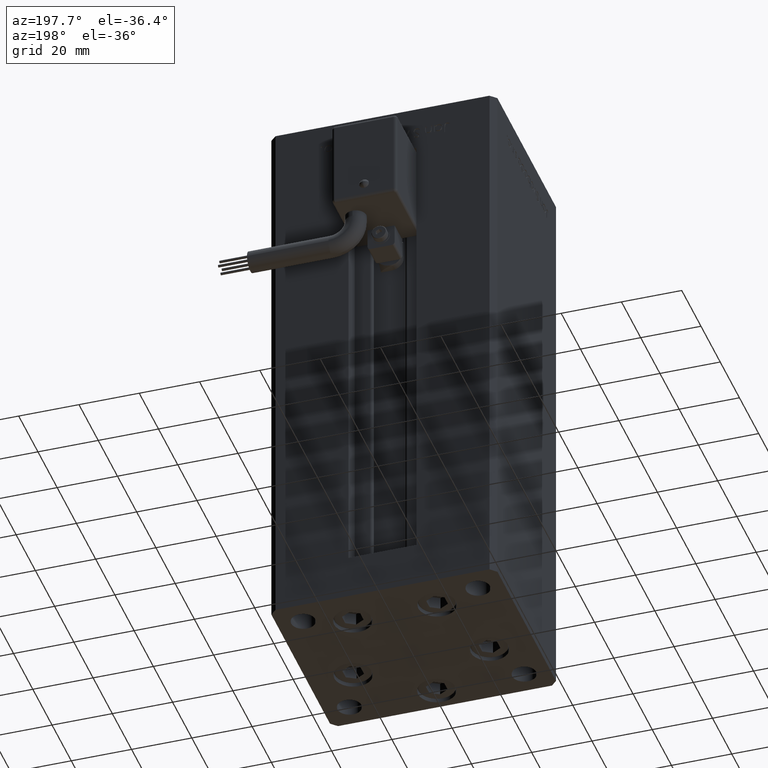
[diagram: clean part render]
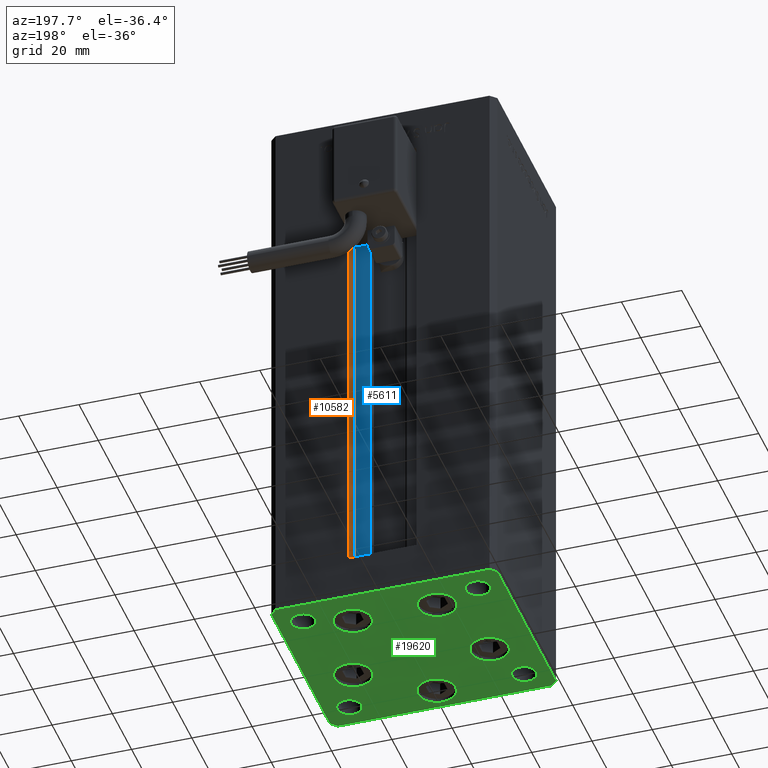
[diagram: same view with three faces highlighted in distinct colors, each labeled with its STEP entity id]
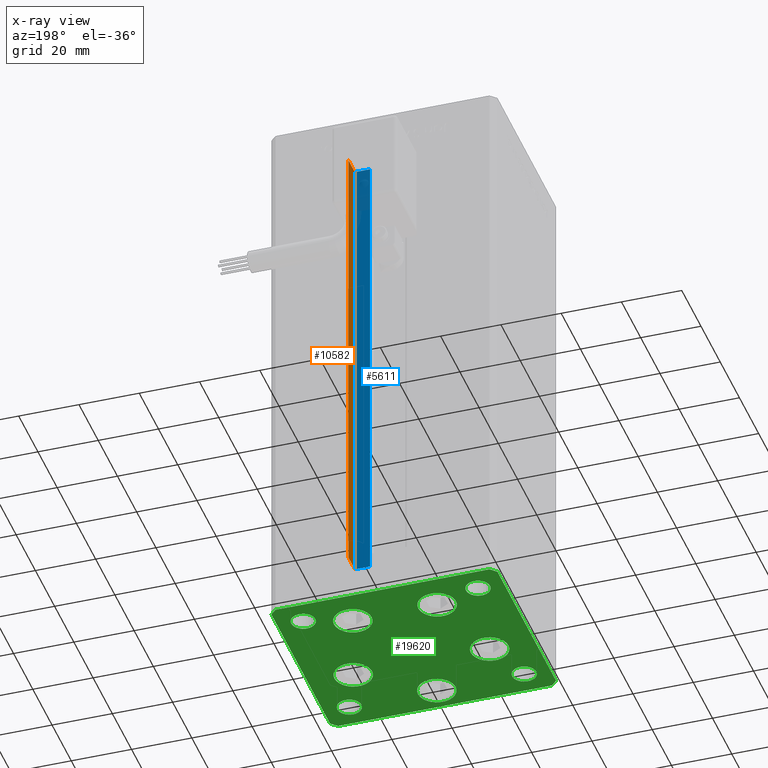
[diagram: x-ray of the same camera — body ghosted, the three highlighted faces saturated]
A machine part, auxiliary view with three faces highlighted in distinct colors.
The next image is the same camera in x-ray (body ghosted, the three faces saturated) — at least one of them is partly hidden behind the body in this view.
Their STEP definitions:

[orange] entity #10582 — the highlighted planar face has unit normal (1, 0, 0).
#2658 = VERTEX_POINT ( 'NONE', #11256 ) ;
#3245 = CARTESIAN_POINT ( 'NONE',  ( 11.25000000000000178, 32.49999999999999289, 0.000000000000000000 ) ) ;
#4114 = AXIS2_PLACEMENT_3D ( 'NONE', #23170, #35996, #24267 ) ;
#5297 = VERTEX_POINT ( 'NONE', #16478 ) ;
#6102 = VECTOR ( 'NONE', #20263, 1000.000000000000000 ) ;
#6157 = PLANE ( 'NONE',  #4114 ) ;
#8460 = VERTEX_POINT ( 'NONE', #34355 ) ;
#10347 = FACE_OUTER_BOUND ( 'NONE', #11712, .T. ) ;
#10569 = DIRECTION ( 'NONE',  ( -0.000000000000000000, -0.000000000000000000, 1.000000000000000000 ) ) ;
#10582 = ADVANCED_FACE ( 'NONE', ( #10347 ), #6157, .F. ) ;
#11256 = CARTESIAN_POINT ( 'NONE',  ( 11.24999999999999467, 32.49999999999999289, 156.0000000000000000 ) ) ;
#11712 = EDGE_LOOP ( 'NONE', ( #16601, #39095, #42160, #30673 ) ) ;
#13854 = EDGE_CURVE ( 'NONE', #2658, #41786, #34547, .T. ) ;
#16399 = EDGE_CURVE ( 'NONE', #8460, #2658, #24440, .T. ) ;
#16478 = CARTESIAN_POINT ( 'NONE',  ( 11.25000000000000178, 25.99999999999999289, 0.000000000000000000 ) ) ;
#16601 = ORIENTED_EDGE ( 'NONE', *, *, #16399, .F. ) ;
#17241 = CARTESIAN_POINT ( 'NONE',  ( 11.25000000000000178, 0.000000000000000000, 156.0000000000000000 ) ) ;
#19466 = LINE ( 'NONE', #54047, #51249 ) ;
#20263 = DIRECTION ( 'NONE',  ( -0.000000000000000000, -0.000000000000000000, 1.000000000000000000 ) ) ;
#20297 = DIRECTION ( 'NONE',  ( 0.000000000000000000, 1.000000000000000000, 0.000000000000000000 ) ) ;
#23170 = CARTESIAN_POINT ( 'NONE',  ( 11.25000000000000178, 25.99999999999999289, 0.000000000000000000 ) ) ;
#24267 = DIRECTION ( 'NONE',  ( 0.000000000000000000, 0.000000000000000000, -1.000000000000000000 ) ) ;
#24440 = LINE ( 'NONE', #3245, #6102 ) ;
#27835 = LINE ( 'NONE', #44583, #31820 ) ;
#30673 = ORIENTED_EDGE ( 'NONE', *, *, #13854, .F. ) ;
#31820 = VECTOR ( 'NONE', #10569, 1000.000000000000000 ) ;
#31870 = VECTOR ( 'NONE', #51272, 1000.000000000000000 ) ;
#34355 = CARTESIAN_POINT ( 'NONE',  ( 11.25000000000000178, 32.49999999999999289, 0.000000000000000000 ) ) ;
#34547 = LINE ( 'NONE', #17241, #31870 ) ;
#34616 = EDGE_CURVE ( 'NONE', #5297, #8460, #19466, .T. ) ;
#35996 = DIRECTION ( 'NONE',  ( 1.000000000000000000, -0.000000000000000000, 0.000000000000000000 ) ) ;
#39095 = ORIENTED_EDGE ( 'NONE', *, *, #34616, .F. ) ;
#41786 = VERTEX_POINT ( 'NONE', #44904 ) ;
#42160 = ORIENTED_EDGE ( 'NONE', *, *, #42947, .T. ) ;
#42947 = EDGE_CURVE ( 'NONE', #5297, #41786, #27835, .T. ) ;
#44583 = CARTESIAN_POINT ( 'NONE',  ( 11.25000000000000178, 25.99999999999999289, 0.000000000000000000 ) ) ;
#44904 = CARTESIAN_POINT ( 'NONE',  ( 11.25000000000000178, 25.99999999999999289, 156.0000000000000000 ) ) ;
#51249 = VECTOR ( 'NONE', #20297, 1000.000000000000000 ) ;
#51272 = DIRECTION ( 'NONE',  ( -0.000000000000000000, -1.000000000000000000, 0.000000000000000000 ) ) ;
#54047 = CARTESIAN_POINT ( 'NONE',  ( 11.25000000000000178, 25.99999999999999289, 0.000000000000000000 ) ) ;

[blue] entity #5611 — the highlighted planar face has unit normal (0, -1, 0).
#225 = DIRECTION ( 'NONE',  ( 0.000000000000000000, -1.000000000000000000, 0.000000000000000000 ) ) ;
#1660 = ORIENTED_EDGE ( 'NONE', *, *, #13056, .F. ) ;
#4138 = DIRECTION ( 'NONE',  ( 0.000000000000000000, -0.000000000000000000, -1.000000000000000000 ) ) ;
#5248 = ORIENTED_EDGE ( 'NONE', *, *, #42947, .F. ) ;
#5297 = VERTEX_POINT ( 'NONE', #16478 ) ;
#5611 = ADVANCED_FACE ( 'NONE', ( #21428 ), #37901, .F. ) ;
#6880 = VECTOR ( 'NONE', #12618, 1000.000000000000000 ) ;
#9215 = EDGE_LOOP ( 'NONE', ( #5248, #1660, #45209, #42852 ) ) ;
#9349 = EDGE_CURVE ( 'NONE', #50083, #48049, #39379, .T. ) ;
#10073 = DIRECTION ( 'NONE',  ( -0.000000000000000000, -0.000000000000000000, 1.000000000000000000 ) ) ;
#10569 = DIRECTION ( 'NONE',  ( -0.000000000000000000, -0.000000000000000000, 1.000000000000000000 ) ) ;
#12618 = DIRECTION ( 'NONE',  ( 1.000000000000000000, 0.000000000000000000, 0.000000000000000000 ) ) ;
#13056 = EDGE_CURVE ( 'NONE', #50083, #5297, #40596, .T. ) ;
#13187 = CARTESIAN_POINT ( 'NONE',  ( 0.000000000000000000, 25.99999999999999289, 156.0000000000000000 ) ) ;
#15715 = VECTOR ( 'NONE', #47199, 1000.000000000000000 ) ;
#16478 = CARTESIAN_POINT ( 'NONE',  ( 11.25000000000000178, 25.99999999999999289, 0.000000000000000000 ) ) ;
#19397 = CARTESIAN_POINT ( 'NONE',  ( 6.183333333334001480, 25.99999999999999289, 0.000000000000000000 ) ) ;
#21428 = FACE_OUTER_BOUND ( 'NONE', #9215, .T. ) ;
#27835 = LINE ( 'NONE', #44583, #31820 ) ;
#31820 = VECTOR ( 'NONE', #10569, 1000.000000000000000 ) ;
#37901 = PLANE ( 'NONE',  #39600 ) ;
#39113 = CARTESIAN_POINT ( 'NONE',  ( 6.183333333334001480, 25.99999999999999289, 0.000000000000000000 ) ) ;
#39379 = LINE ( 'NONE', #39113, #53962 ) ;
#39600 = AXIS2_PLACEMENT_3D ( 'NONE', #47635, #225, #4138 ) ;
#40596 = LINE ( 'NONE', #19397, #6880 ) ;
#41786 = VERTEX_POINT ( 'NONE', #44904 ) ;
#42739 = LINE ( 'NONE', #13187, #15715 ) ;
#42852 = ORIENTED_EDGE ( 'NONE', *, *, #52802, .F. ) ;
#42947 = EDGE_CURVE ( 'NONE', #5297, #41786, #27835, .T. ) ;
#43800 = CARTESIAN_POINT ( 'NONE',  ( 6.183333333334001480, 25.99999999999999289, 156.0000000000000000 ) ) ;
#44583 = CARTESIAN_POINT ( 'NONE',  ( 11.25000000000000178, 25.99999999999999289, 0.000000000000000000 ) ) ;
#44904 = CARTESIAN_POINT ( 'NONE',  ( 11.25000000000000178, 25.99999999999999289, 156.0000000000000000 ) ) ;
#45209 = ORIENTED_EDGE ( 'NONE', *, *, #9349, .T. ) ;
#47199 = DIRECTION ( 'NONE',  ( -1.000000000000000000, 0.000000000000000000, 0.000000000000000000 ) ) ;
#47635 = CARTESIAN_POINT ( 'NONE',  ( 6.183333333334001480, 25.99999999999999289, 0.000000000000000000 ) ) ;
#48049 = VERTEX_POINT ( 'NONE', #43800 ) ;
#50083 = VERTEX_POINT ( 'NONE', #51640 ) ;
#51640 = CARTESIAN_POINT ( 'NONE',  ( 6.183333333334001480, 25.99999999999999289, 0.000000000000000000 ) ) ;
#52802 = EDGE_CURVE ( 'NONE', #41786, #48049, #42739, .T. ) ;
#53962 = VECTOR ( 'NONE', #10073, 1000.000000000000000 ) ;

[green] entity #19620 — the highlighted planar face has unit normal (0, 0, -1).
#107 = DIRECTION ( 'NONE',  ( 0.7071067811865474617, -0.7071067811865474617, 0.000000000000000000 ) ) ;
#126 = CIRCLE ( 'NONE', #31308, 6.250000000000000000 ) ;
#136 = VERTEX_POINT ( 'NONE', #4422 ) ;
#159 = CARTESIAN_POINT ( 'NONE',  ( -20.24106857963322881, 19.49999999999999645, 0.000000000000000000 ) ) ;
#168 = EDGE_CURVE ( 'NONE', #2392, #21480, #42193, .T. ) ;
#477 = VECTOR ( 'NONE', #107, 1000.000000000000114 ) ;
#523 = ORIENTED_EDGE ( 'NONE', *, *, #5525, .T. ) ;
#663 = PLANE ( 'NONE',  #12608 ) ;
#1140 = ORIENTED_EDGE ( 'NONE', *, *, #48241, .F. ) ;
#1273 = VERTEX_POINT ( 'NONE', #37250 ) ;
#1374 = CARTESIAN_POINT ( 'NONE',  ( -25.00000000000001421, 24.00000000000000711, 0.000000000000000000 ) ) ;
#1895 = CARTESIAN_POINT ( 'NONE',  ( 7.741068579633223479, 19.50000000000000000, 0.000000000000000000 ) ) ;
#1987 = CARTESIAN_POINT ( 'NONE',  ( -7.741068579633227031, 19.49999999999999645, 0.000000000000000000 ) ) ;
#2128 = ORIENTED_EDGE ( 'NONE', *, *, #35820, .T. ) ;
#2244 = VERTEX_POINT ( 'NONE', #52688 ) ;
#2392 = VERTEX_POINT ( 'NONE', #23656 ) ;
#3087 = DIRECTION ( 'NONE',  ( 1.000000000000000000, 0.000000000000000000, 0.000000000000000000 ) ) ;
#3469 = EDGE_CURVE ( 'NONE', #1273, #29765, #14616, .T. ) ;
#3603 = VERTEX_POINT ( 'NONE', #48927 ) ;
#3769 = EDGE_LOOP ( 'NONE', ( #45899, #12869 ) ) ;
#3842 = ORIENTED_EDGE ( 'NONE', *, *, #55168, .T. ) ;
#4078 = CARTESIAN_POINT ( 'NONE',  ( 37.49999999999992184, 30.50000000000001066, 0.000000000000000000 ) ) ;
#4206 = EDGE_LOOP ( 'NONE', ( #24595, #39413 ) ) ;
#4268 = EDGE_CURVE ( 'NONE', #38177, #35567, #19910, .T. ) ;
#4422 = CARTESIAN_POINT ( 'NONE',  ( 37.50000000000001421, -30.50000000000000711, 0.000000000000000000 ) ) ;
#4883 = LINE ( 'NONE', #25826, #12887 ) ;
#4902 = CIRCLE ( 'NONE', #44954, 4.000000000000000000 ) ;
#4994 = CARTESIAN_POINT ( 'NONE',  ( -37.50000000000001421, 30.49999999999998579, 0.000000000000000000 ) ) ;
#5022 = CARTESIAN_POINT ( 'NONE',  ( -25.00000000000001066, -23.99999999999999289, 0.000000000000000000 ) ) ;
#5067 = VECTOR ( 'NONE', #37191, 1000.000000000000000 ) ;
#5128 = CARTESIAN_POINT ( 'NONE',  ( -29.00000000000001066, 24.00000000000000711, 0.000000000000000000 ) ) ;
#5525 = EDGE_CURVE ( 'NONE', #36523, #5928, #30683, .T. ) ;
#5906 = EDGE_CURVE ( 'NONE', #36703, #136, #4883, .T. ) ;
#5928 = VERTEX_POINT ( 'NONE', #159 ) ;
#6502 = DIRECTION ( 'NONE',  ( 1.000000000000000000, 9.773090005503140331E-17, 0.000000000000000000 ) ) ;
#6819 = DIRECTION ( 'NONE',  ( 1.000000000000000000, 0.000000000000000000, 0.000000000000000000 ) ) ;
#7233 = DIRECTION ( 'NONE',  ( 1.000000000000000000, 0.000000000000000000, 0.000000000000000000 ) ) ;
#7347 = EDGE_CURVE ( 'NONE', #33160, #37627, #4902, .T. ) ;
#7414 = ORIENTED_EDGE ( 'NONE', *, *, #41550, .T. ) ;
#7496 = DIRECTION ( 'NONE',  ( 0.000000000000000000, -0.000000000000000000, -1.000000000000000000 ) ) ;
#7722 = CIRCLE ( 'NONE', #43353, 6.250000000000000000 ) ;
#8197 = DIRECTION ( 'NONE',  ( 1.000000000000000000, 0.000000000000000000, 0.000000000000000000 ) ) ;
#8416 = AXIS2_PLACEMENT_3D ( 'NONE', #54359, #7496, #20335 ) ;
#8746 = DIRECTION ( 'NONE',  ( 0.000000000000000000, -0.000000000000000000, -1.000000000000000000 ) ) ;
#8812 = AXIS2_PLACEMENT_3D ( 'NONE', #35847, #53152, #6819 ) ;
#8896 = CARTESIAN_POINT ( 'NONE',  ( 13.99106857963322348, 19.50000000000000000, 0.000000000000000000 ) ) ;
#9028 = CARTESIAN_POINT ( 'NONE',  ( -37.49999999999998579, -30.50000000000001421, 0.000000000000000000 ) ) ;
#9161 = DIRECTION ( 'NONE',  ( 0.000000000000000000, -0.000000000000000000, -1.000000000000000000 ) ) ;
#9200 = VERTEX_POINT ( 'NONE', #33550 ) ;
#9539 = CIRCLE ( 'NONE', #43369, 6.250000000000001776 ) ;
#9612 = CARTESIAN_POINT ( 'NONE',  ( -35.49999999999998579, -32.50000000000001421, 0.000000000000000000 ) ) ;
#10216 = DIRECTION ( 'NONE',  ( -0.7071067811865426878, -0.7071067811865524577, 0.000000000000000000 ) ) ;
#10496 = LINE ( 'NONE', #31421, #48619 ) ;
#10557 = ORIENTED_EDGE ( 'NONE', *, *, #54703, .F. ) ;
#11482 = DIRECTION ( 'NONE',  ( 0.000000000000000000, -0.000000000000000000, -1.000000000000000000 ) ) ;
#11513 = EDGE_CURVE ( 'NONE', #136, #9200, #28536, .T. ) ;
#12167 = EDGE_CURVE ( 'NONE', #39235, #19978, #9539, .T. ) ;
#12234 = EDGE_CURVE ( 'NONE', #41668, #36703, #18519, .T. ) ;
#12336 = ORIENTED_EDGE ( 'NONE', *, *, #21164, .F. ) ;
#12400 = FACE_OUTER_BOUND ( 'NONE', #24039, .T. ) ;
#12608 = AXIS2_PLACEMENT_3D ( 'NONE', #46686, #21308, #8197 ) ;
#12869 = ORIENTED_EDGE ( 'NONE', *, *, #49531, .T. ) ;
#12878 = CARTESIAN_POINT ( 'NONE',  ( 16.37741699796951877, -8.000000000000000000, 0.000000000000000000 ) ) ;
#12887 = VECTOR ( 'NONE', #47294, 1000.000000000000000 ) ;
#13013 = EDGE_CURVE ( 'NONE', #43386, #52860, #36416, .T. ) ;
#13093 = VECTOR ( 'NONE', #6502, 1000.000000000000000 ) ;
#13146 = CARTESIAN_POINT ( 'NONE',  ( 6.250000000000002665, -24.00000000000000000, 0.000000000000000000 ) ) ;
#13335 = DIRECTION ( 'NONE',  ( 0.000000000000000000, -0.000000000000000000, -1.000000000000000000 ) ) ;
#13346 = AXIS2_PLACEMENT_3D ( 'NONE', #53816, #31811, #7233 ) ;
#13380 = ORIENTED_EDGE ( 'NONE', *, *, #49044, .T. ) ;
#13869 = CIRCLE ( 'NONE', #26322, 6.250000000000001776 ) ;
#14135 = DIRECTION ( 'NONE',  ( 1.000000000000000000, 0.000000000000000000, 0.000000000000000000 ) ) ;
#14460 = AXIS2_PLACEMENT_3D ( 'NONE', #5128, #17953, #25229 ) ;
#14616 = LINE ( 'NONE', #22995, #24505 ) ;
#15670 = DIRECTION ( 'NONE',  ( 1.000000000000000000, 0.000000000000000000, 0.000000000000000000 ) ) ;
#16632 = DIRECTION ( 'NONE',  ( -0.7071067811865482389, 0.7071067811865469066, 0.000000000000000000 ) ) ;
#16831 = AXIS2_PLACEMENT_3D ( 'NONE', #38746, #34280, #51289 ) ;
#17175 = VERTEX_POINT ( 'NONE', #44817 ) ;
#17219 = EDGE_CURVE ( 'NONE', #9200, #1273, #49833, .T. ) ;
#17393 = FACE_BOUND ( 'NONE', #17624, .T. ) ;
#17624 = EDGE_LOOP ( 'NONE', ( #12336, #1140 ) ) ;
#17668 = FACE_BOUND ( 'NONE', #4206, .T. ) ;
#17902 = VERTEX_POINT ( 'NONE', #29887 ) ;
#17953 = DIRECTION ( 'NONE',  ( -0.000000000000000000, 0.000000000000000000, 1.000000000000000000 ) ) ;
#18001 = CIRCLE ( 'NONE', #54519, 4.000000000000003553 ) ;
#18294 = EDGE_CURVE ( 'NONE', #5928, #36523, #32870, .T. ) ;
#18319 = VERTEX_POINT ( 'NONE', #50990 ) ;
#18396 = ORIENTED_EDGE ( 'NONE', *, *, #12167, .T. ) ;
#18519 = LINE ( 'NONE', #9612, #13093 ) ;
#18532 = DIRECTION ( 'NONE',  ( -1.000000000000000000, -1.954618001100629052E-16, 0.000000000000000000 ) ) ;
#18748 = ORIENTED_EDGE ( 'NONE', *, *, #13013, .T. ) ;
#18787 = DIRECTION ( 'NONE',  ( 0.000000000000000000, -0.000000000000000000, -1.000000000000000000 ) ) ;
#19620 = ADVANCED_FACE ( 'NONE', ( #33047, #20753, #24949, #51143, #17668, #17393, #25771, #42509, #12400, #26030 ), #663, .T. ) ;
#19745 = CARTESIAN_POINT ( 'NONE',  ( 25.00000000000000711, -23.99999999999999289, 0.000000000000000000 ) ) ;
#19814 = DIRECTION ( 'NONE',  ( 0.000000000000000000, -0.000000000000000000, -1.000000000000000000 ) ) ;
#19854 = CARTESIAN_POINT ( 'NONE',  ( 29.00000000000001066, 24.00000000000000711, 0.000000000000000000 ) ) ;
#19910 = CIRCLE ( 'NONE', #34310, 4.000000000000003553 ) ;
#19978 = VERTEX_POINT ( 'NONE', #12878 ) ;
#20210 = CARTESIAN_POINT ( 'NONE',  ( 28.87741699796952233, -8.000000000000000000, 0.000000000000000000 ) ) ;
#20335 = DIRECTION ( 'NONE',  ( 1.000000000000000000, 0.000000000000000000, 0.000000000000000000 ) ) ;
#20504 = DIRECTION ( 'NONE',  ( 1.000000000000000000, 0.000000000000000000, 0.000000000000000000 ) ) ;
#20517 = EDGE_LOOP ( 'NONE', ( #53921, #10557 ) ) ;
#20753 = FACE_BOUND ( 'NONE', #25670, .T. ) ;
#20776 = DIRECTION ( 'NONE',  ( 0.000000000000000000, -0.000000000000000000, -1.000000000000000000 ) ) ;
#20976 = CARTESIAN_POINT ( 'NONE',  ( -35.49999999999998579, -32.50000000000001421, 0.000000000000000000 ) ) ;
#21164 = EDGE_CURVE ( 'NONE', #17175, #46734, #18001, .T. ) ;
#21308 = DIRECTION ( 'NONE',  ( -0.000000000000000000, 0.000000000000000000, 1.000000000000000000 ) ) ;
#21480 = VERTEX_POINT ( 'NONE', #1895 ) ;
#21948 = DIRECTION ( 'NONE',  ( 0.000000000000000000, -0.000000000000000000, -1.000000000000000000 ) ) ;
#22175 = CIRCLE ( 'NONE', #16831, 4.000000000000003553 ) ;
#22503 = ORIENTED_EDGE ( 'NONE', *, *, #24743, .T. ) ;
#22911 = CARTESIAN_POINT ( 'NONE',  ( -37.49999999999998579, -30.50000000000001421, 0.000000000000000000 ) ) ;
#22995 = CARTESIAN_POINT ( 'NONE',  ( 35.49999999999992184, 32.50000000000000711, 0.000000000000000000 ) ) ;
#23241 = CARTESIAN_POINT ( 'NONE',  ( 22.62741699796951877, -8.000000000000000000, 0.000000000000000000 ) ) ;
#23367 = CIRCLE ( 'NONE', #14460, 3.999999999999996447 ) ;
#23656 = CARTESIAN_POINT ( 'NONE',  ( 20.24106857963322526, 19.50000000000000000, 0.000000000000000000 ) ) ;
#24039 = EDGE_LOOP ( 'NONE', ( #52322, #32822, #32833, #41319, #42948, #49700, #2128, #18748 ) ) ;
#24505 = VECTOR ( 'NONE', #18532, 1000.000000000000000 ) ;
#24592 = CARTESIAN_POINT ( 'NONE',  ( -35.50000000000002842, 32.49999999999999289, 0.000000000000000000 ) ) ;
#24595 = ORIENTED_EDGE ( 'NONE', *, *, #32218, .T. ) ;
#24743 = EDGE_CURVE ( 'NONE', #21480, #2392, #126, .T. ) ;
#24949 = FACE_BOUND ( 'NONE', #37162, .T. ) ;
#25229 = DIRECTION ( 'NONE',  ( 1.000000000000000000, 0.000000000000000000, 0.000000000000000000 ) ) ;
#25670 = EDGE_LOOP ( 'NONE', ( #22503, #49473 ) ) ;
#25771 = FACE_BOUND ( 'NONE', #3769, .T. ) ;
#25826 = CARTESIAN_POINT ( 'NONE',  ( 35.50000000000000711, -32.50000000000000711, 0.000000000000000000 ) ) ;
#26030 = FACE_BOUND ( 'NONE', #48500, .T. ) ;
#26322 = AXIS2_PLACEMENT_3D ( 'NONE', #50202, #19814, #54127 ) ;
#26456 = DIRECTION ( 'NONE',  ( 1.000000000000000000, 0.000000000000000000, 0.000000000000000000 ) ) ;
#27559 = EDGE_CURVE ( 'NONE', #44263, #2244, #23367, .T. ) ;
#28334 = CARTESIAN_POINT ( 'NONE',  ( 35.50000000000000711, -32.50000000000000711, 0.000000000000000000 ) ) ;
#28536 = LINE ( 'NONE', #45811, #5067 ) ;
#28628 = CARTESIAN_POINT ( 'NONE',  ( 33.00000000000001421, -23.99999999999999289, 0.000000000000000000 ) ) ;
#29398 = CARTESIAN_POINT ( 'NONE',  ( -29.00000000000001066, -23.99999999999999289, 0.000000000000000000 ) ) ;
#29765 = VERTEX_POINT ( 'NONE', #24592 ) ;
#29777 = AXIS2_PLACEMENT_3D ( 'NONE', #51529, #13335, #33974 ) ;
#29887 = CARTESIAN_POINT ( 'NONE',  ( -28.87741699796952233, -8.000000000000005329, 0.000000000000000000 ) ) ;
#30599 = CARTESIAN_POINT ( 'NONE',  ( 2.939152317953647500E-15, -24.00000000000000000, 0.000000000000000000 ) ) ;
#30683 = CIRCLE ( 'NONE', #8416, 6.250000000000000000 ) ;
#30760 = CARTESIAN_POINT ( 'NONE',  ( -33.00000000000000711, -23.99999999999999289, 0.000000000000000000 ) ) ;
#30775 = CIRCLE ( 'NONE', #35231, 3.999999999999996447 ) ;
#31308 = AXIS2_PLACEMENT_3D ( 'NONE', #42769, #8746, #51412 ) ;
#31421 = CARTESIAN_POINT ( 'NONE',  ( -35.50000000000002842, 32.49999999999999289, 0.000000000000000000 ) ) ;
#31608 = CARTESIAN_POINT ( 'NONE',  ( 22.62741699796951877, -8.000000000000000000, 0.000000000000000000 ) ) ;
#31811 = DIRECTION ( 'NONE',  ( 0.000000000000000000, -0.000000000000000000, -1.000000000000000000 ) ) ;
#32218 = EDGE_CURVE ( 'NONE', #17902, #3603, #36905, .T. ) ;
#32386 = CARTESIAN_POINT ( 'NONE',  ( -29.00000000000001066, -23.99999999999999289, 0.000000000000000000 ) ) ;
#32822 = ORIENTED_EDGE ( 'NONE', *, *, #12234, .T. ) ;
#32833 = ORIENTED_EDGE ( 'NONE', *, *, #5906, .T. ) ;
#32870 = CIRCLE ( 'NONE', #8812, 6.250000000000000000 ) ;
#33047 = FACE_BOUND ( 'NONE', #48258, .T. ) ;
#33160 = VERTEX_POINT ( 'NONE', #5022 ) ;
#33550 = CARTESIAN_POINT ( 'NONE',  ( 37.49999999999992184, 30.50000000000001066, 0.000000000000000000 ) ) ;
#33974 = DIRECTION ( 'NONE',  ( 1.000000000000000000, 0.000000000000000000, 0.000000000000000000 ) ) ;
#34280 = DIRECTION ( 'NONE',  ( -0.000000000000000000, 0.000000000000000000, 1.000000000000000000 ) ) ;
#34310 = AXIS2_PLACEMENT_3D ( 'NONE', #34473, #51197, #51475 ) ;
#34438 = DIRECTION ( 'NONE',  ( 1.000000000000000000, 0.000000000000000000, 0.000000000000000000 ) ) ;
#34473 = CARTESIAN_POINT ( 'NONE',  ( 29.00000000000001066, -23.99999999999999289, 0.000000000000000000 ) ) ;
#35129 = EDGE_CURVE ( 'NONE', #3603, #17902, #13869, .T. ) ;
#35231 = AXIS2_PLACEMENT_3D ( 'NONE', #47258, #38904, #34438 ) ;
#35567 = VERTEX_POINT ( 'NONE', #19745 ) ;
#35588 = CIRCLE ( 'NONE', #52509, 4.000000000000000000 ) ;
#35820 = EDGE_CURVE ( 'NONE', #29765, #43386, #10496, .T. ) ;
#35847 = CARTESIAN_POINT ( 'NONE',  ( -13.99106857963322703, 19.49999999999999645, 0.000000000000000000 ) ) ;
#36320 = EDGE_LOOP ( 'NONE', ( #51069, #3842 ) ) ;
#36348 = DIRECTION ( 'NONE',  ( 0.000000000000000000, -0.000000000000000000, -1.000000000000000000 ) ) ;
#36416 = LINE ( 'NONE', #41917, #48749 ) ;
#36523 = VERTEX_POINT ( 'NONE', #1987 ) ;
#36703 = VERTEX_POINT ( 'NONE', #28334 ) ;
#36905 = CIRCLE ( 'NONE', #29777, 6.250000000000001776 ) ;
#37071 = CIRCLE ( 'NONE', #48647, 6.250000000000001776 ) ;
#37162 = EDGE_LOOP ( 'NONE', ( #7414, #18396 ) ) ;
#37191 = DIRECTION ( 'NONE',  ( -1.478780668045802821E-15, 1.000000000000000000, 0.000000000000000000 ) ) ;
#37250 = CARTESIAN_POINT ( 'NONE',  ( 35.49999999999992184, 32.50000000000000711, 0.000000000000000000 ) ) ;
#37397 = CIRCLE ( 'NONE', #13346, 4.000000000000003553 ) ;
#37627 = VERTEX_POINT ( 'NONE', #30760 ) ;
#38052 = DIRECTION ( 'NONE',  ( 0.000000000000000000, -0.000000000000000000, -1.000000000000000000 ) ) ;
#38177 = VERTEX_POINT ( 'NONE', #28628 ) ;
#38329 = LINE ( 'NONE', #9028, #477 ) ;
#38746 = CARTESIAN_POINT ( 'NONE',  ( 29.00000000000001066, 24.00000000000000711, 0.000000000000000000 ) ) ;
#38904 = DIRECTION ( 'NONE',  ( -0.000000000000000000, 0.000000000000000000, 1.000000000000000000 ) ) ;
#39235 = VERTEX_POINT ( 'NONE', #20210 ) ;
#39380 = EDGE_CURVE ( 'NONE', #52860, #41668, #38329, .T. ) ;
#39413 = ORIENTED_EDGE ( 'NONE', *, *, #35129, .T. ) ;
#41319 = ORIENTED_EDGE ( 'NONE', *, *, #11513, .T. ) ;
#41356 = DIRECTION ( 'NONE',  ( 1.000000000000000000, 0.000000000000000000, 0.000000000000000000 ) ) ;
#41550 = EDGE_CURVE ( 'NONE', #19978, #39235, #37071, .T. ) ;
#41668 = VERTEX_POINT ( 'NONE', #20976 ) ;
#41917 = CARTESIAN_POINT ( 'NONE',  ( -37.50000000000001421, 30.49999999999998579, 0.000000000000000000 ) ) ;
#42193 = CIRCLE ( 'NONE', #49301, 6.250000000000000000 ) ;
#42223 = DIRECTION ( 'NONE',  ( 1.000000000000000000, 0.000000000000000000, 0.000000000000000000 ) ) ;
#42482 = EDGE_CURVE ( 'NONE', #18319, #47110, #7722, .T. ) ;
#42509 = FACE_BOUND ( 'NONE', #20517, .T. ) ;
#42769 = CARTESIAN_POINT ( 'NONE',  ( 13.99106857963322348, 19.50000000000000000, 0.000000000000000000 ) ) ;
#42948 = ORIENTED_EDGE ( 'NONE', *, *, #17219, .T. ) ;
#43310 = AXIS2_PLACEMENT_3D ( 'NONE', #30599, #21948, #14135 ) ;
#43353 = AXIS2_PLACEMENT_3D ( 'NONE', #50627, #20776, #20504 ) ;
#43369 = AXIS2_PLACEMENT_3D ( 'NONE', #23241, #18787, #48911 ) ;
#43386 = VERTEX_POINT ( 'NONE', #4994 ) ;
#43533 = VECTOR ( 'NONE', #16632, 999.9999999999998863 ) ;
#44263 = VERTEX_POINT ( 'NONE', #1374 ) ;
#44817 = CARTESIAN_POINT ( 'NONE',  ( 33.00000000000001421, 24.00000000000000711, 0.000000000000000000 ) ) ;
#44954 = AXIS2_PLACEMENT_3D ( 'NONE', #32386, #11482, #3087 ) ;
#45051 = CIRCLE ( 'NONE', #43310, 6.250000000000000000 ) ;
#45811 = CARTESIAN_POINT ( 'NONE',  ( 37.50000000000001421, -30.50000000000000711, 0.000000000000000000 ) ) ;
#45899 = ORIENTED_EDGE ( 'NONE', *, *, #4268, .T. ) ;
#46686 = CARTESIAN_POINT ( 'NONE',  ( 0.000000000000000000, 0.000000000000000000, 0.000000000000000000 ) ) ;
#46734 = VERTEX_POINT ( 'NONE', #47488 ) ;
#47110 = VERTEX_POINT ( 'NONE', #13146 ) ;
#47258 = CARTESIAN_POINT ( 'NONE',  ( -29.00000000000001066, 24.00000000000000711, 0.000000000000000000 ) ) ;
#47294 = DIRECTION ( 'NONE',  ( 0.7071067811865487940, 0.7071067811865463515, 0.000000000000000000 ) ) ;
#47488 = CARTESIAN_POINT ( 'NONE',  ( 25.00000000000000711, 24.00000000000000711, 0.000000000000000000 ) ) ;
#48241 = EDGE_CURVE ( 'NONE', #46734, #17175, #22175, .T. ) ;
#48258 = EDGE_LOOP ( 'NONE', ( #50571, #523 ) ) ;
#48500 = EDGE_LOOP ( 'NONE', ( #52695, #13380 ) ) ;
#48619 = VECTOR ( 'NONE', #10216, 1000.000000000000000 ) ;
#48647 = AXIS2_PLACEMENT_3D ( 'NONE', #31608, #36348, #41356 ) ;
#48749 = VECTOR ( 'NONE', #49228, 1000.000000000000000 ) ;
#48911 = DIRECTION ( 'NONE',  ( 1.000000000000000000, 0.000000000000000000, 0.000000000000000000 ) ) ;
#48927 = CARTESIAN_POINT ( 'NONE',  ( -16.37741699796951877, -8.000000000000005329, 0.000000000000000000 ) ) ;
#49044 = EDGE_CURVE ( 'NONE', #37627, #33160, #35588, .T. ) ;
#49228 = DIRECTION ( 'NONE',  ( 4.550094363217855288E-16, -1.000000000000000000, 0.000000000000000000 ) ) ;
#49301 = AXIS2_PLACEMENT_3D ( 'NONE', #8896, #9161, #26456 ) ;
#49473 = ORIENTED_EDGE ( 'NONE', *, *, #168, .T. ) ;
#49531 = EDGE_CURVE ( 'NONE', #35567, #38177, #37397, .T. ) ;
#49700 = ORIENTED_EDGE ( 'NONE', *, *, #3469, .T. ) ;
#49833 = LINE ( 'NONE', #4078, #43533 ) ;
#50202 = CARTESIAN_POINT ( 'NONE',  ( -22.62741699796951877, -8.000000000000005329, 0.000000000000000000 ) ) ;
#50571 = ORIENTED_EDGE ( 'NONE', *, *, #18294, .T. ) ;
#50627 = CARTESIAN_POINT ( 'NONE',  ( 2.939152317953647500E-15, -24.00000000000000000, 0.000000000000000000 ) ) ;
#50990 = CARTESIAN_POINT ( 'NONE',  ( -6.249999999999997335, -24.00000000000000000, 0.000000000000000000 ) ) ;
#51069 = ORIENTED_EDGE ( 'NONE', *, *, #42482, .T. ) ;
#51143 = FACE_BOUND ( 'NONE', #36320, .T. ) ;
#51197 = DIRECTION ( 'NONE',  ( 0.000000000000000000, -0.000000000000000000, -1.000000000000000000 ) ) ;
#51289 = DIRECTION ( 'NONE',  ( 1.000000000000000000, 0.000000000000000000, 0.000000000000000000 ) ) ;
#51412 = DIRECTION ( 'NONE',  ( 1.000000000000000000, 0.000000000000000000, 0.000000000000000000 ) ) ;
#51475 = DIRECTION ( 'NONE',  ( 1.000000000000000000, 0.000000000000000000, 0.000000000000000000 ) ) ;
#51529 = CARTESIAN_POINT ( 'NONE',  ( -22.62741699796951877, -8.000000000000005329, 0.000000000000000000 ) ) ;
#52322 = ORIENTED_EDGE ( 'NONE', *, *, #39380, .T. ) ;
#52509 = AXIS2_PLACEMENT_3D ( 'NONE', #29398, #38052, #42223 ) ;
#52688 = CARTESIAN_POINT ( 'NONE',  ( -33.00000000000000711, 24.00000000000000711, 0.000000000000000000 ) ) ;
#52695 = ORIENTED_EDGE ( 'NONE', *, *, #7347, .T. ) ;
#52860 = VERTEX_POINT ( 'NONE', #22911 ) ;
#53152 = DIRECTION ( 'NONE',  ( 0.000000000000000000, -0.000000000000000000, -1.000000000000000000 ) ) ;
#53816 = CARTESIAN_POINT ( 'NONE',  ( 29.00000000000001066, -23.99999999999999289, 0.000000000000000000 ) ) ;
#53921 = ORIENTED_EDGE ( 'NONE', *, *, #27559, .F. ) ;
#54127 = DIRECTION ( 'NONE',  ( 1.000000000000000000, 0.000000000000000000, 0.000000000000000000 ) ) ;
#54359 = CARTESIAN_POINT ( 'NONE',  ( -13.99106857963322703, 19.49999999999999645, 0.000000000000000000 ) ) ;
#54519 = AXIS2_PLACEMENT_3D ( 'NONE', #19854, #54716, #15670 ) ;
#54703 = EDGE_CURVE ( 'NONE', #2244, #44263, #30775, .T. ) ;
#54716 = DIRECTION ( 'NONE',  ( -0.000000000000000000, 0.000000000000000000, 1.000000000000000000 ) ) ;
#55168 = EDGE_CURVE ( 'NONE', #47110, #18319, #45051, .T. ) ;